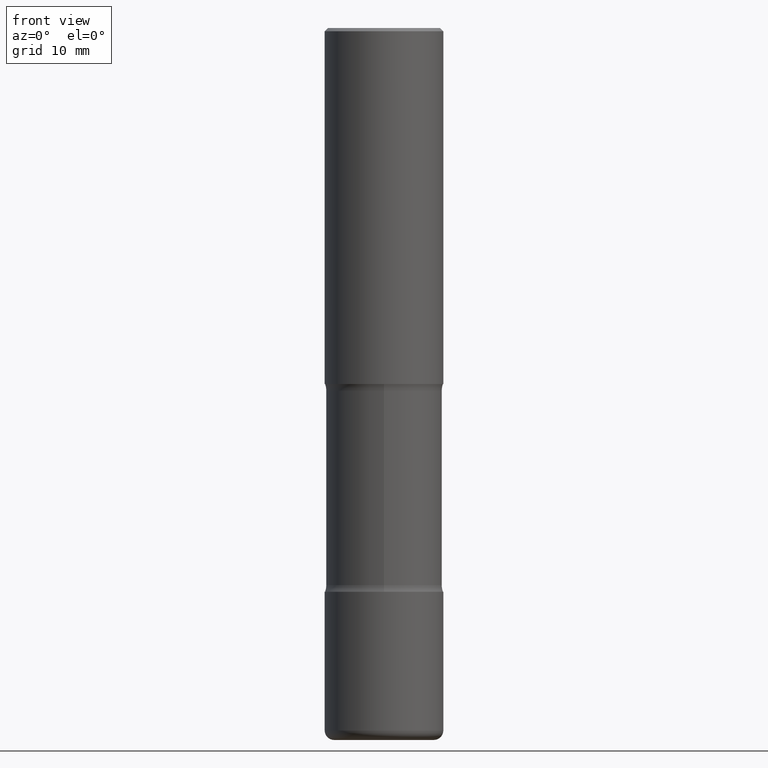
[diagram: clean part render]
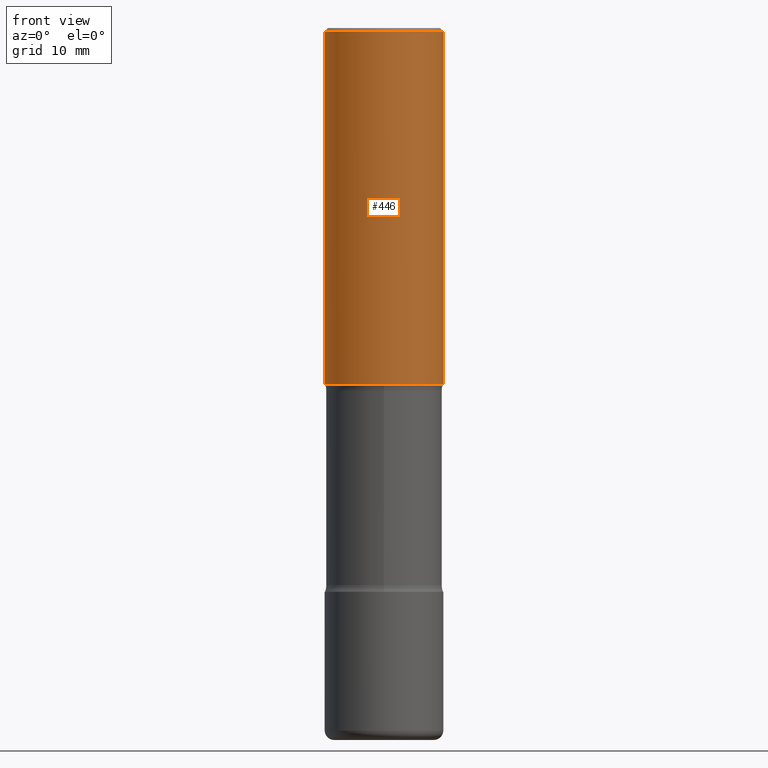
[diagram: same view with one face highlighted and labeled with its STEP entity id]
A machine part, front view. The second image highlights one B-rep face of the part: STEP entity #446.
In plain terms, the highlighted cylindrical surface (partial cylindrical patch) has radius 9.525 mm, axis along (-0, 0, 1).
Its self-contained STEP definition (entity closure, byte-faithful):
#1 = EDGE_CURVE ( 'NONE', #60, #247, #345, .T. ) ;
#2 = VERTEX_POINT ( 'NONE', #480 ) ;
#18 = VECTOR ( 'NONE', #451, 39.37007874015748143 ) ;
#24 = VERTEX_POINT ( 'NONE', #240 ) ;
#32 = ORIENTED_EDGE ( 'NONE', *, *, #212, .T. ) ;
#37 = EDGE_LOOP ( 'NONE', ( #352, #514, #32, #373 ) ) ;
#57 = CIRCLE ( 'NONE', #393, 0.3750000000000003886 ) ;
#60 = VERTEX_POINT ( 'NONE', #412 ) ;
#64 = CARTESIAN_POINT ( 'NONE',  ( 5.502304813916557343E-29, -7.855833012397078448E-15, -2.250000000000000000 ) ) ;
#103 = DIRECTION ( 'NONE',  ( 1.000000000000000000, -6.982962677686265922E-15, 0.000000000000000000 ) ) ;
#109 = CARTESIAN_POINT ( 'NONE',  ( -0.3750000000000003886, 2.548781377355489085E-15, -0.02000000000000013572 ) ) ;
#124 = DIRECTION ( 'NONE',  ( -2.445468806185136597E-29, 3.491481338843145583E-15, 1.000000000000000000 ) ) ;
#138 = DIRECTION ( 'NONE',  ( -2.445468806185136877E-29, 3.491481338843145188E-15, 1.000000000000000000 ) ) ;
#141 = DIRECTION ( 'NONE',  ( 1.000000000000000000, -6.982962677686266711E-15, 4.876176775795935793E-29 ) ) ;
#150 = CIRCLE ( 'NONE', #201, 0.3750000000000005551 ) ;
#192 = CARTESIAN_POINT ( 'NONE',  ( 0.3750000000000004996, -2.618611004132353566E-15, 1.828566290923478445E-29 ) ) ;
#201 = AXIS2_PLACEMENT_3D ( 'NONE', #64, #492, #103 ) ;
#212 = EDGE_CURVE ( 'NONE', #24, #2, #369, .T. ) ;
#238 = FACE_OUTER_BOUND ( 'NONE', #37, .T. ) ;
#240 = CARTESIAN_POINT ( 'NONE',  ( 0.3750000000000005551, -1.047444401652943162E-14, -2.250000000000000000 ) ) ;
#247 = VERTEX_POINT ( 'NONE', #109 ) ;
#266 = EDGE_CURVE ( 'NONE', #60, #24, #150, .T. ) ;
#344 = EDGE_CURVE ( 'NONE', #247, #2, #57, .T. ) ;
#345 = LINE ( 'NONE', #477, #545 ) ;
#351 = DIRECTION ( 'NONE',  ( -2.445468806185136597E-29, 3.491481338843145583E-15, 1.000000000000000000 ) ) ;
#352 = ORIENTED_EDGE ( 'NONE', *, *, #1, .F. ) ;
#369 = LINE ( 'NONE', #192, #18 ) ;
#373 = ORIENTED_EDGE ( 'NONE', *, *, #344, .F. ) ;
#376 = CARTESIAN_POINT ( 'NONE',  ( 4.890937612370306439E-31, -6.982962677686338448E-17, -0.02000000000000013572 ) ) ;
#393 = AXIS2_PLACEMENT_3D ( 'NONE', #376, #124, #555 ) ;
#410 = CARTESIAN_POINT ( 'NONE',  ( 0.000000000000000000, 0.000000000000000000, 0.000000000000000000 ) ) ;
#412 = CARTESIAN_POINT ( 'NONE',  ( -0.3750000000000005551, -1.298296060486588865E-15, -2.250000000000000000 ) ) ;
#446 = ADVANCED_FACE ( 'NONE', ( #238 ), #485, .T. ) ;
#451 = DIRECTION ( 'NONE',  ( -2.445468806185136877E-29, 3.491481338843145188E-15, 1.000000000000000000 ) ) ;
#477 = CARTESIAN_POINT ( 'NONE',  ( -0.3750000000000004996, 2.664535259100379247E-15, -1.844600658845592120E-29 ) ) ;
#480 = CARTESIAN_POINT ( 'NONE',  ( 0.3750000000000003886, -2.642516375941190395E-15, -0.02000000000000013572 ) ) ;
#485 = CYLINDRICAL_SURFACE ( 'NONE', #497, 0.3750000000000004996 ) ;
#492 = DIRECTION ( 'NONE',  ( -2.445468806185136597E-29, 3.491481338843145583E-15, 1.000000000000000000 ) ) ;
#497 = AXIS2_PLACEMENT_3D ( 'NONE', #410, #351, #141 ) ;
#514 = ORIENTED_EDGE ( 'NONE', *, *, #266, .T. ) ;
#545 = VECTOR ( 'NONE', #138, 39.37007874015748143 ) ;
#555 = DIRECTION ( 'NONE',  ( 1.000000000000000000, -6.982962677686265922E-15, 0.000000000000000000 ) ) ;